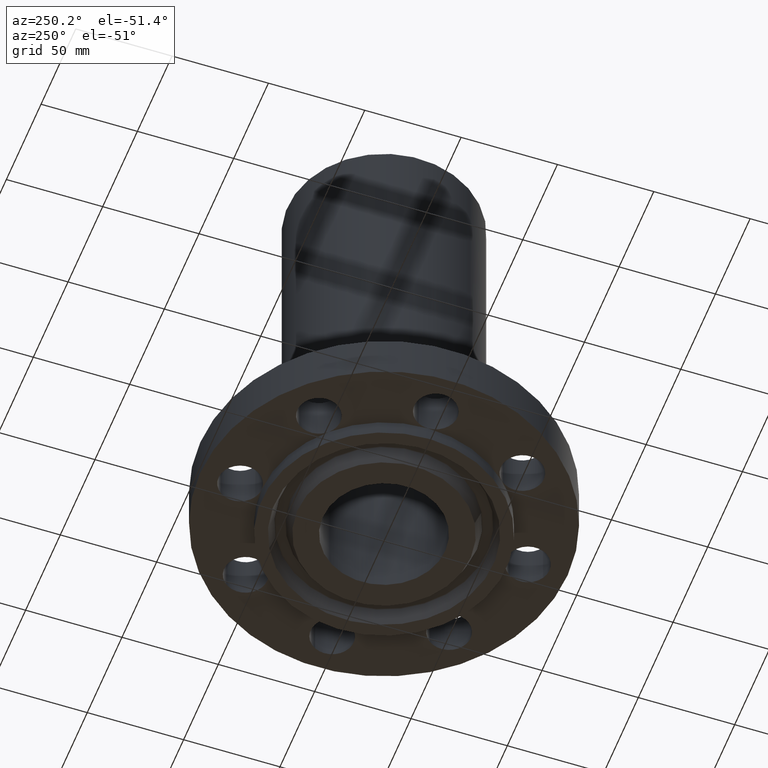
[diagram: clean part render]
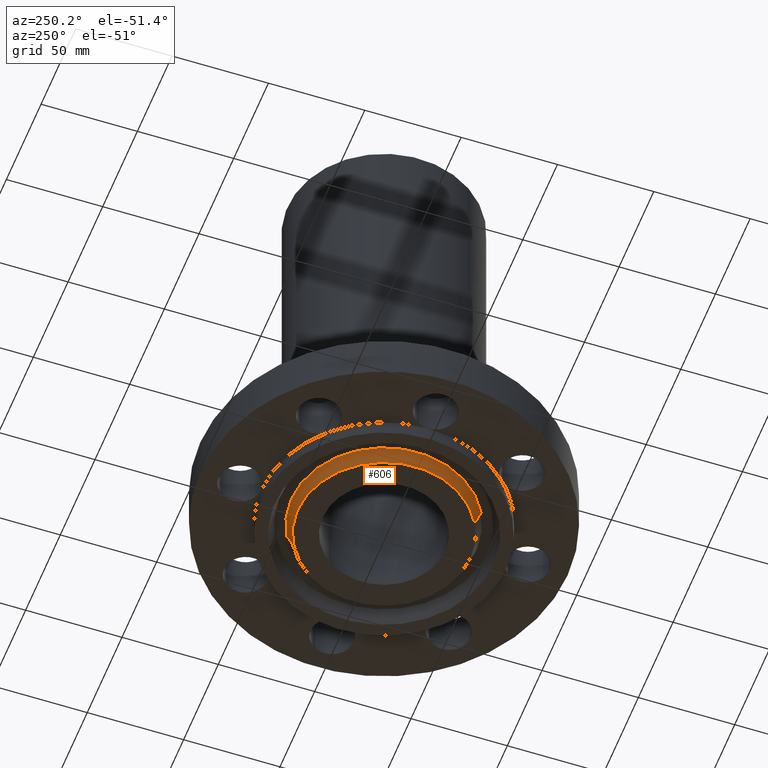
[diagram: same view with one face highlighted and labeled with its STEP entity id]
A machine part, auxiliary view. The second image highlights one B-rep face of the part: STEP entity #606.
In plain terms, the highlighted conical surface has half-angle 23 deg.
Its self-contained STEP definition (entity closure, byte-faithful):
#555=AXIS2_PLACEMENT_3D('Circle Axis2P3D',#553,#554,$) ;
#579=AXIS2_PLACEMENT_3D('Cone Axis2P3D',#576,#577,#578) ;
#590=AXIS2_PLACEMENT_3D('Circle Axis2P3D',#588,#589,$) ;
#553=CARTESIAN_POINT('Axis2P3D Location',(0.,0.,-0.313000000001)) ;
#557=CARTESIAN_POINT('Vertex',(-0.846425788409,-1.54937201302,-0.313000000001)) ;
#559=CARTESIAN_POINT('Vertex',(0.846425788409,1.54937201302,-0.313000000001)) ;
#576=CARTESIAN_POINT('Axis2P3D Location',(0.,0.,-0.313000000001)) ;
#581=CARTESIAN_POINT('Line Origine',(-0.876352350206,-1.60415221695,-0.165943667509)) ;
#585=CARTESIAN_POINT('Vertex',(-0.906278912003,-1.65893242087,-0.0188873350169)) ;
#588=CARTESIAN_POINT('Axis2P3D Location',(0.,0.,-0.0188873350169)) ;
#592=CARTESIAN_POINT('Vertex',(0.906278912003,1.65893242087,-0.0188873350169)) ;
#595=CARTESIAN_POINT('Line Origine',(0.876352350206,1.60415221695,-0.165943667509)) ;
#554=DIRECTION('Axis2P3D Direction',(0.,0.,-0.0393700787402)) ;
#577=DIRECTION('Axis2P3D Direction',(-0.,-0.,0.0393700787402)) ;
#578=DIRECTION('Axis2P3D XDirection',(-0.0188750212049,-0.0345504945626,0.)) ;
#582=DIRECTION('Vector Direction',(-0.00737505833565,-0.0134999537303,0.0362403485611)) ;
#589=DIRECTION('Axis2P3D Direction',(-0.,0.,0.0393700787402)) ;
#596=DIRECTION('Vector Direction',(0.00737505833565,0.0134999537303,0.0362403485611)) ;
#583=VECTOR('Line Direction',#582,0.0393700787402) ;
#597=VECTOR('Line Direction',#596,0.0393700787402) ;
#601=ORIENTED_EDGE('',*,*,#561,.F.) ;
#602=ORIENTED_EDGE('',*,*,#587,.T.) ;
#603=ORIENTED_EDGE('',*,*,#594,.T.) ;
#604=ORIENTED_EDGE('',*,*,#599,.F.) ;
#606=ADVANCED_FACE('PartBody',(#605),#580,.T.) ;
#556=CIRCLE('generated circle',#555,1.76550000001) ;
#591=CIRCLE('generated circle',#590,1.89034341942) ;
#580=CONICAL_SURFACE('Cone',#579,1.76550000001,0.401425727959) ;
#561=EDGE_CURVE('',#558,#560,#556,.T.) ;
#587=EDGE_CURVE('',#558,#586,#584,.T.) ;
#594=EDGE_CURVE('',#586,#593,#591,.F.) ;
#599=EDGE_CURVE('',#560,#593,#598,.T.) ;
#600=EDGE_LOOP('',(#601,#602,#603,#604)) ;
#605=FACE_OUTER_BOUND('',#600,.T.) ;
#584=LINE('Line',#581,#583) ;
#598=LINE('Line',#595,#597) ;
#558=VERTEX_POINT('',#557) ;
#560=VERTEX_POINT('',#559) ;
#586=VERTEX_POINT('',#585) ;
#593=VERTEX_POINT('',#592) ;